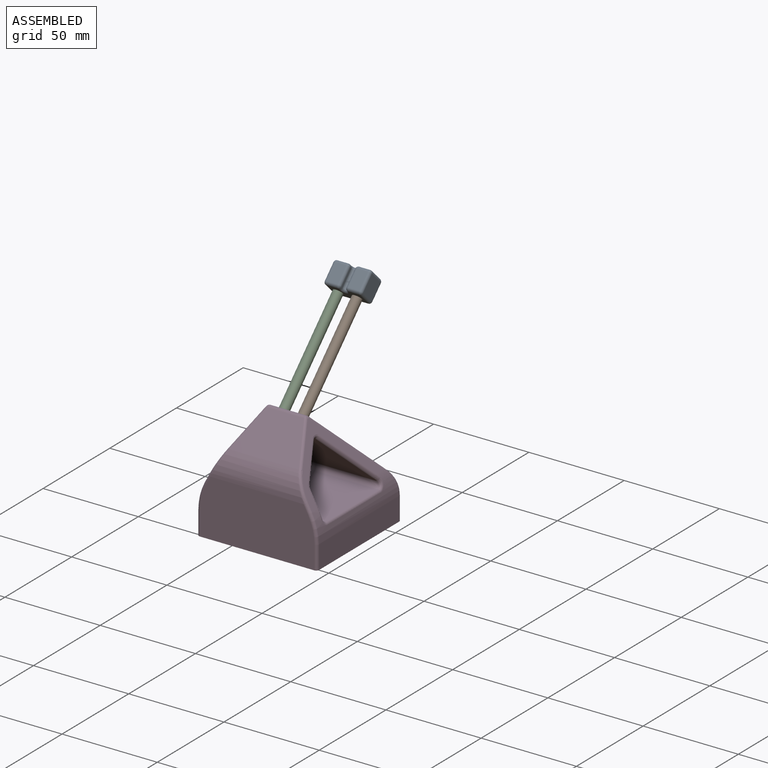
[diagram: assembled view]
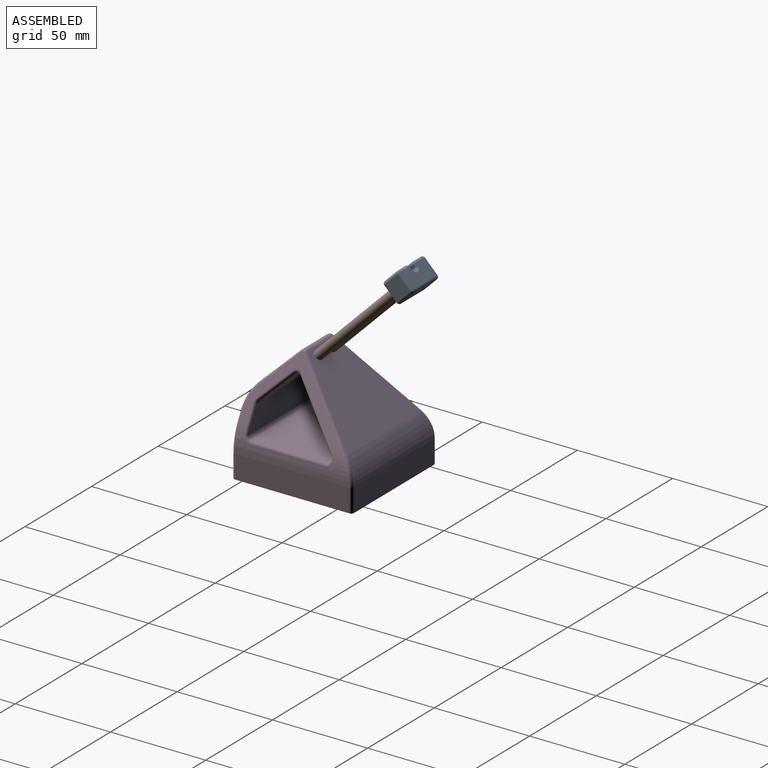
[diagram: assembled view, second angle]
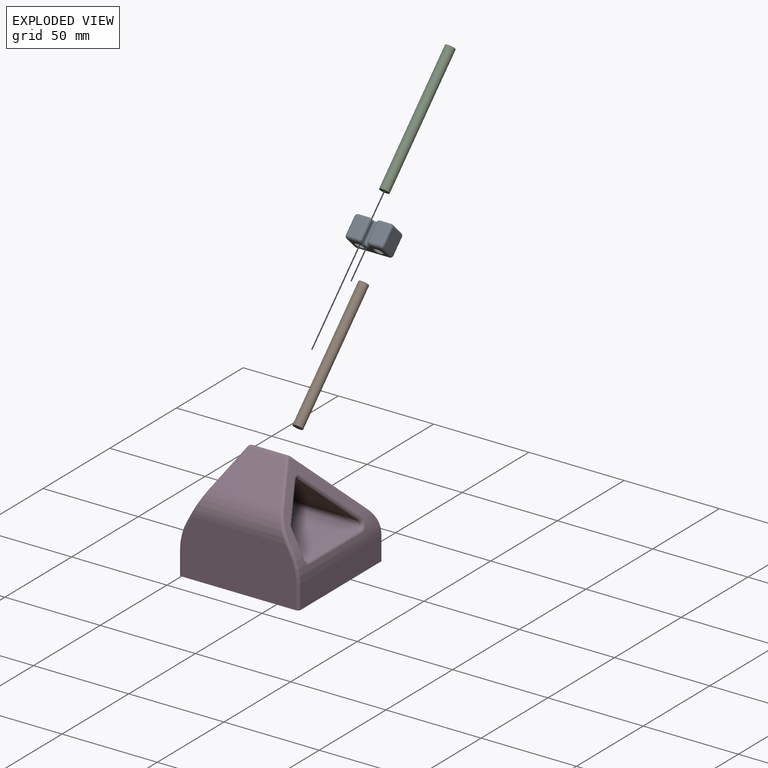
[diagram: exploded view]
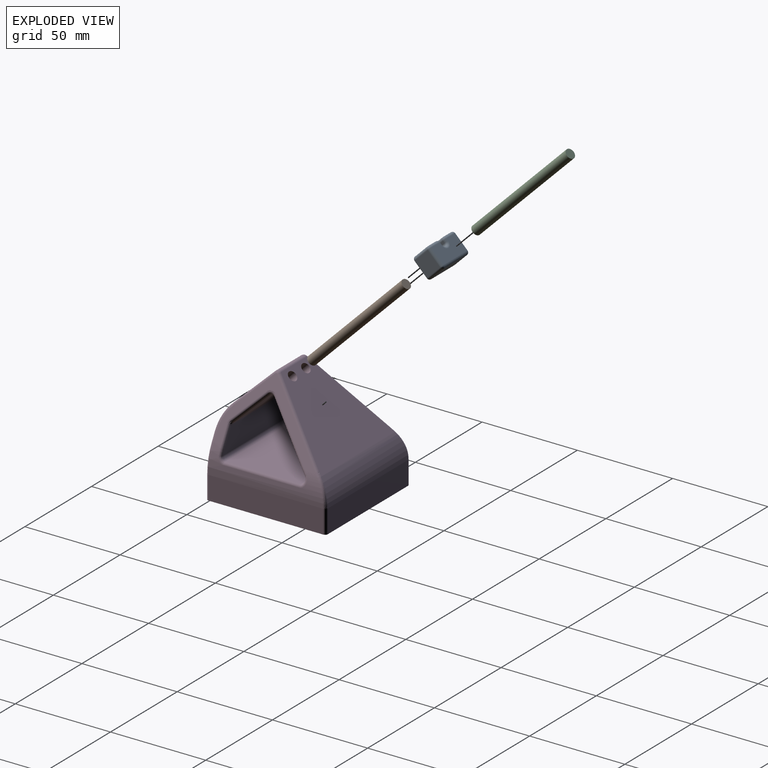
[diagram: exploded view, second angle]
ASSEMBLY  parts=4 mates=3
PART A: 48 faces, bbox 20x12x12 mm
  f0: plane 9.2x5.8mm, normal (0,1,0), area 53.4mm2, adj f37,f38,f44,f45
  f1: plane 9.2x1.2mm, normal (-1,0,0), area 11mm2, adj f36,f41,f44,f47
  f2: plane 9.2x1.2mm, normal (1,0,0), area 11mm2, adj f25,f31,f34,f41
  f3: plane 9.2x5.8mm, normal (0,1,0), area 53.4mm2, adj f15,f21,f24,f25
  f4: plane 9.2x9.2mm, normal (-1,0,0), area 84.6mm2, adj f13,f15,f18,f19
  f5: plane 17.2x9.2mm, normal (0,-1,0), area 158.2mm2, adj f17,f18,f28,f29
  f6: cylinder r=2.5mm len=7mm, axis (0,0,-1), area 110mm2, adj f9,f11
  f7: plane 9.2x9.2mm, normal (1,0,0), area 84.6mm2, adj f27,f28,f38,f39
  f8: cylinder r=2.5mm len=7mm, axis (0,0,-1), area 110mm2, adj f9,f12
  f9: plane 17.2x9.2mm, normal (0,0,1), area 99.9mm2, adj f6,f8,f19,f24,f29,f34,f39,f40
  f10: plane 17.2x9.2mm, normal (0,0,-1), area 139.2mm2, adj f13,f17,f21,f27,f31,f35,f36,f37
  f11: plane 5x5mm, normal (0,0,1), area 19.6mm2, adj f6
  f12: plane 5x5mm, normal (0,0,1), area 19.6mm2, adj f8
  f13: cylinder r=1.4mm len=9.2mm, axis (0,-1,0), area 20.2mm2, adj f4,f10,f14,f16
  f14: sphere r=1.4mm, area 3.1mm2, adj f13,f17,f18
  f15: cylinder r=1.4mm len=9.2mm, axis (0,0,1), area 20.2mm2, adj f3,f4,f16,f20
  f16: sphere r=1.4mm, area 3.1mm2, adj f13,f15,f21
  f17: cylinder r=1.4mm len=17.2mm, axis (1,0,0), area 37.8mm2, adj f5,f10,f14,f22
  f18: cylinder r=1.4mm len=9.2mm, axis (0,0,-1), area 20.2mm2, adj f4,f5,f14,f23
  f19: cylinder r=1.4mm len=9.2mm, axis (0,1,0), area 20.2mm2, adj f4,f9,f20,f23
  f20: sphere r=1.4mm, area 3.1mm2, adj f15,f19,f24
  f21: cylinder r=1.4mm len=5.8mm, axis (-1,0,0), area 12.8mm2, adj f3,f10,f16,f26
  f22: sphere r=1.4mm, area 3.1mm2, adj f17,f27,f28
  f23: sphere r=1.4mm, area 3.1mm2, adj f18,f19,f29
  f24: cylinder r=1.4mm len=5.8mm, axis (1,0,0), area 12.8mm2, adj f3,f9,f20,f30
  f25: cylinder r=1.4mm len=9.2mm, axis (0,0,-1), area 20.2mm2, adj f2,f3,f26,f30
  f26: sphere r=1.4mm, area 3.1mm2, adj f21,f25,f31
  f27: cylinder r=1.4mm len=9.2mm, axis (0,1,0), area 20.2mm2, adj f7,f10,f22,f32
  f28: cylinder r=1.4mm len=9.2mm, axis (0,0,1), area 20.2mm2, adj f5,f7,f22,f33
  f29: cylinder r=1.4mm len=17.2mm, axis (-1,0,0), area 37.8mm2, adj f5,f9,f23,f33
  f30: sphere r=1.4mm, area 3.1mm2, adj f24,f25,f34
  f31: cylinder r=1.4mm len=1.4mm, axis (0,1,0), area 2.6mm2, adj f2,f10,f26,f35
  f32: sphere r=1.4mm, area 3.1mm2, adj f27,f37,f38
  f33: sphere r=1.4mm, area 3.1mm2, adj f28,f29,f39
  f34: cylinder r=1.4mm len=1.4mm, axis (0,-1,0), area 2.6mm2, adj f2,f9,f30,f40
  f35: torus R=2.8mm, axis (0,0,1), area 13.2mm2, adj f10,f31,f36,f41
  f36: cylinder r=1.4mm len=1.4mm, axis (0,-1,0), area 2.6mm2, adj f1,f10,f35,f42
  f37: cylinder r=1.4mm len=5.8mm, axis (-1,0,0), area 12.8mm2, adj f0,f10,f32,f42
  f38: cylinder r=1.4mm len=9.2mm, axis (0,0,-1), area 20.2mm2, adj f0,f7,f32,f43
  f39: cylinder r=1.4mm len=9.2mm, axis (0,-1,0), area 20.2mm2, adj f7,f9,f33,f43
  f40: torus R=2.8mm, axis (0,0,1), area 13.2mm2, adj f9,f34,f41,f47
  f41: cylinder r=1.4mm len=9.2mm, axis (0,0,1), area 40.5mm2, adj f1,f2,f35,f40
  f42: sphere r=1.4mm, area 3.1mm2, adj f36,f37,f44
  f43: sphere r=1.4mm, area 3.1mm2, adj f38,f39,f45
  f44: cylinder r=1.4mm len=9.2mm, axis (0,0,-1), area 20.2mm2, adj f0,f1,f42,f46
  f45: cylinder r=1.4mm len=5.8mm, axis (1,0,0), area 12.8mm2, adj f0,f9,f43,f46
  f46: sphere r=1.4mm, area 3.1mm2, adj f44,f45,f47
  f47: cylinder r=1.4mm len=1.4mm, axis (0,1,0), area 2.6mm2, adj f1,f9,f40,f46
PART B: 3 faces, bbox 5x5x70 mm
  f0: cylinder r=2.5mm len=70mm, axis (0,0,-1), area 1099.6mm2, adj f1,f2
  f1: plane 5x5mm, normal (0,0,1), area 19.6mm2, adj f0
  f2: plane 5x5mm, normal (0,0,-1), area 19.6mm2, adj f0
PART C: same geometry as B
PART D: 73 faces, bbox 67.9x63x59.2 mm
  f0: plane 60x12.19mm, normal (1,0,0), area 731.3mm2, adj f9,f21,f27,f37
  f1: plane 60x12.19mm, normal (-1,0,0), area 731.3mm2, adj f9,f20,f38,f48
  f2: plane 54.97x33.62mm, normal (0,0.71,0.71), area 1728.3mm2, adj f19,f26,f33,f34,f44,f45,f69,f71
  f3: plane 36.31x16mm, normal (0,-0.71,0.71), area 628.6mm2, adj f18,f26,f31,f42
  f4: plane 56.74x11.89mm, normal (0,1,0), area 607.1mm2, adj f22,f24,f52,f54,f63,f65
  f5: plane 42.14x13.69mm, normal (0,0.71,-0.71), area 674.4mm2, adj f24,f25,f49,f59
  f6: plane 54.72x25.58mm, normal (0,-0.71,-0.71), area 1489.9mm2, adj f23,f25,f53,f55,f62,f64
  f7: plane 60x29.86mm, normal (0,-1,0), area 1723.9mm2, adj f9,f18,f27,f28,f29,f38,f39,f40
  f8: plane 60x12.23mm, normal (0,1,0), area 734mm2, adj f9,f19,f36,f37,f47,f48
  f9: plane 63x63mm, normal (0,0,-1), area 367.1mm2, adj f0,f1,f7,f8,f10,f11,f12,f13
  f10: plane 60x15mm, normal (-1,0,0), area 900mm2, adj f9,f11,f13,f14
  f11: plane 60x15mm, normal (0,1,0), area 900mm2, adj f9,f10,f12,f14
  f12: plane 60x15mm, normal (1,0,0), area 900mm2, adj f9,f11,f13,f14
  f13: plane 60x15mm, normal (0,-1,0), area 900mm2, adj f9,f10,f12,f14
  f14: plane 60x60mm, normal (0,0,-1), area 3600mm2, adj f10,f11,f12,f13
  f15: plane 58.72x39.27mm, normal (0,0,1), area 2306.2mm2, adj f22,f23,f58,f68
  f16: plane 53.47x32.07mm, normal (0.88,0,0.47), area 354.9mm2, adj f21,f29,f30,f31,f32,f33,f49,f50
  f17: plane 53.47x32.07mm, normal (-0.88,0,0.47), area 354.9mm2, adj f20,f40,f41,f42,f43,f44,f59,f60
  f18: cylinder r=18mm len=48.76mm, axis (-1,0,0), area 601.3mm2, adj f3,f7,f30,f41
  f19: cylinder r=18mm len=60mm, axis (1,0,0), area 822.7mm2, adj f2,f8,f35,f46
  f20: cylinder r=30mm len=60mm, axis (0,1,0), area 475mm2, adj f1,f17,f39,f45,f46,f47,f64,f65
  f21: cylinder r=30mm len=60mm, axis (0,-1,0), area 475mm2, adj f0,f16,f28,f34,f35,f36,f54,f55
  f22: cylinder r=2mm len=58.72mm, axis (1,0,0), area 181.4mm2, adj f4,f15,f56,f67
  f23: cylinder r=2mm len=58.72mm, axis (1,0,0), area 270mm2, adj f6,f15,f57,f66
  f24: cylinder r=2mm len=44.78mm, axis (1,0,0), area 68.3mm2, adj f4,f5,f50,f61
  f25: cylinder r=2mm len=27.54mm, axis (1,0,0), area 84.2mm2, adj f5,f6,f51,f60
  f26: cylinder r=2mm len=19.24mm, axis (1,0,0), area 60.4mm2, adj f2,f3,f32,f43
  f27: cylinder r=1.5mm len=12.19mm, axis (0,0,1), area 28.7mm2, adj f0,f7,f9,f28
  f28: torus R=28.5mm, axis (0,1,0), area 34mm2, adj f7,f21,f27,f29
  f29: cylinder r=1.5mm len=4.96mm, axis (0.47,0,-0.88), area 11.4mm2, adj f7,f16,f28,f30
  f30: bspline ~12.79x7.55mm, area 31.4mm2, adj f16,f18,f29,f31
  f31: cylinder r=1.5mm len=17.06mm, axis (-0.35,0.66,0.66), area 44.7mm2, adj f3,f16,f30,f32
  f32: bspline ~3.28x1.44mm, area 3.5mm2, adj f16,f26,f31,f33
  f33: cylinder r=1.5mm len=32.99mm, axis (0.35,0.66,-0.66), area 89.1mm2, adj f2,f16,f32,f34
  f34: bspline ~2.76x2.21mm, area 4.9mm2, adj f2,f21,f33,f35
  f35: bspline ~16.21x7.7mm, area 31.4mm2, adj f19,f21,f34,f36
  f36: torus R=28.5mm, axis (0,1,0), area 0.1mm2, adj f8,f21,f35,f37
  f37: cylinder r=1.5mm len=12.19mm, axis (0,0,-1), area 28.7mm2, adj f0,f8,f9,f36
  f38: cylinder r=1.5mm len=12.19mm, axis (0,0,-1), area 28.7mm2, adj f1,f7,f9,f39
  f39: torus R=28.5mm, axis (0,1,0), area 34mm2, adj f7,f20,f38,f40
  f40: cylinder r=1.5mm len=4.96mm, axis (0.47,0,0.88), area 11.4mm2, adj f7,f17,f39,f41
  f41: bspline ~16.65x9.46mm, area 31.4mm2, adj f17,f18,f40,f42
  f42: cylinder r=1.5mm len=17.06mm, axis (-0.35,-0.66,-0.66), area 44.7mm2, adj f3,f17,f41,f43
  f43: bspline ~2.83x1.4mm, area 3.6mm2, adj f17,f26,f42,f44
  f44: cylinder r=1.5mm len=32.99mm, axis (0.35,-0.66,0.66), area 89.1mm2, adj f2,f17,f43,f45
  f45: bspline ~2.76x2.21mm, area 4.9mm2, adj f2,f20,f44,f46
  f46: bspline ~16.21x7.7mm, area 31.4mm2, adj f19,f20,f45,f47
  f47: torus R=28.5mm, axis (0,1,0), area 0.1mm2, adj f8,f20,f46,f48
  f48: cylinder r=1.5mm len=12.19mm, axis (0,0,1), area 28.7mm2, adj f1,f8,f9,f47
  f49: cylinder r=1.5mm len=15.46mm, axis (0.35,-0.66,-0.66), area 59.3mm2, adj f5,f16,f50,f51
  f50: bspline ~3.18x2.64mm, area 6.1mm2, adj f16,f24,f49,f52
  f51: bspline ~5.45x3.06mm, area 11.5mm2, adj f16,f25,f49,f53
  f52: cylinder r=1.5mm len=8.69mm, axis (0.47,0,-0.88), area 21.3mm2, adj f4,f16,f50,f54
  f53: cylinder r=1.5mm len=25.91mm, axis (-0.35,-0.66,0.66), area 104.6mm2, adj f6,f16,f51,f55
  f54: torus R=28.5mm, axis (0,-1,0), area 10.4mm2, adj f4,f21,f52,f56
  f55: bspline ~7.44x7.26mm, area 6.2mm2, adj f6,f21,f53,f57
  f56: bspline ~4.56x4.27mm, area 9.2mm2, adj f21,f22,f54,f58
  f57: bspline ~6.79x4.27mm, area 15mm2, adj f21,f23,f55,f58
  f58: cylinder r=1.5mm len=39.27mm, axis (0,-1,0), area 80mm2, adj f15,f21,f56,f57
  f59: cylinder r=1.5mm len=15.46mm, axis (0.35,0.66,0.66), area 59.3mm2, adj f5,f17,f60,f61
  f60: bspline ~4.95x2.79mm, area 11.5mm2, adj f17,f25,f59,f62
  f61: bspline ~3.92x3.18mm, area 6.1mm2, adj f17,f24,f59,f63
  f62: cylinder r=1.5mm len=25.91mm, axis (-0.35,0.66,-0.66), area 104.6mm2, adj f6,f17,f60,f64
  f63: cylinder r=1.5mm len=8.69mm, axis (0.47,0,0.88), area 21.3mm2, adj f4,f17,f61,f65
  f64: bspline ~7.44x7.26mm, area 6.2mm2, adj f6,f20,f62,f66
  f65: torus R=28.5mm, axis (0,-1,0), area 10.4mm2, adj f4,f20,f63,f67
  f66: bspline ~6.79x4.27mm, area 15mm2, adj f20,f23,f64,f68
  f67: bspline ~4.56x4.27mm, area 9.2mm2, adj f20,f22,f65,f68
  f68: cylinder r=1.5mm len=39.27mm, axis (0,1,0), area 80mm2, adj f15,f20,f66,f67
  f69: cylinder r=2.5mm len=7.07mm, axis (0,0.71,0.71), area 78.5mm2, adj f2,f70
  f70: plane 5x3.54mm, normal (0,0.71,0.71), area 19.6mm2, adj f69
  f71: cylinder r=2.5mm len=7.07mm, axis (0,0.71,0.71), area 78.5mm2, adj f2,f72
  f72: plane 5x3.54mm, normal (0,0.71,0.71), area 19.6mm2, adj f71
PLACE A rot(axis=(1,0,0),135deg) t=(-6.82,53.02,95.97)mm
PLACE B rot(axis=(-1,0,0),45deg) t=(2.16,2.27,40.66)mm
PLACE C rot(axis=(-1,0,0),45deg) t=(-7.84,2.27,40.66)mm
PLACE D t=(-7.88,10.93,-11.57)mm
MATE fastened A.f8 <-> B.f0  axis (0,-0.71,-0.71) through (2.16,51.77,90.15)mm
MATE fastened B.f0 <-> D.f71  axis (0,-0.71,-0.71) through (2.16,2.27,40.66)mm
MATE fastened C.f0 <-> D.f69  axis (0,-0.71,-0.71) through (-7.84,2.27,40.66)mm
